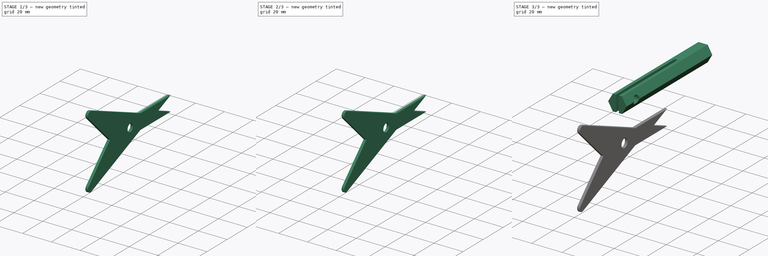
[diagram: build sequence overview — one tinted view per stage of 3, left to right]
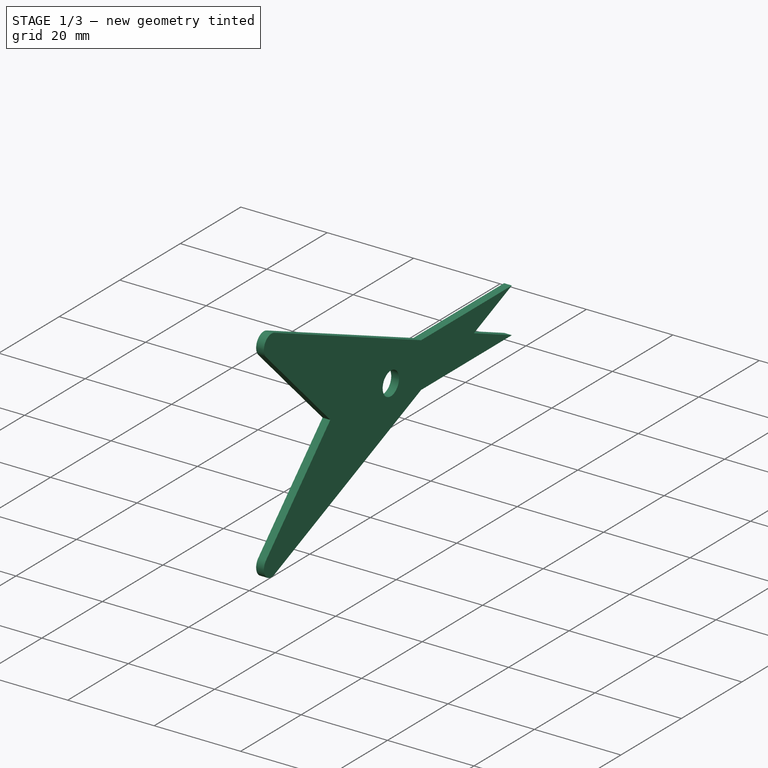
[diagram: stage 1 of 3 — iso view after this stage's code; geometry added in this stage tinted green]
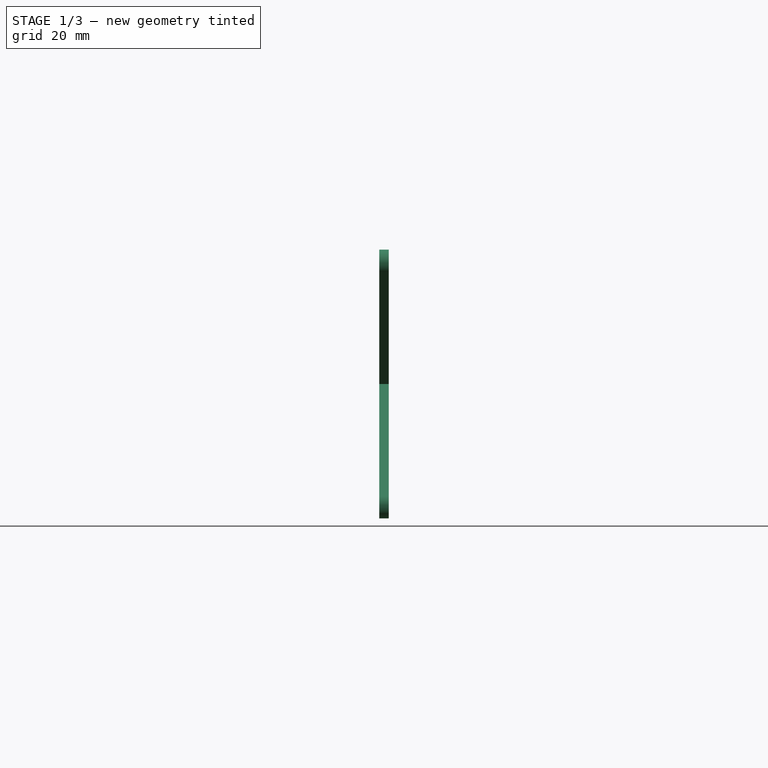
[diagram: stage 1 of 3 — front view after this stage's code; geometry added in this stage tinted green]
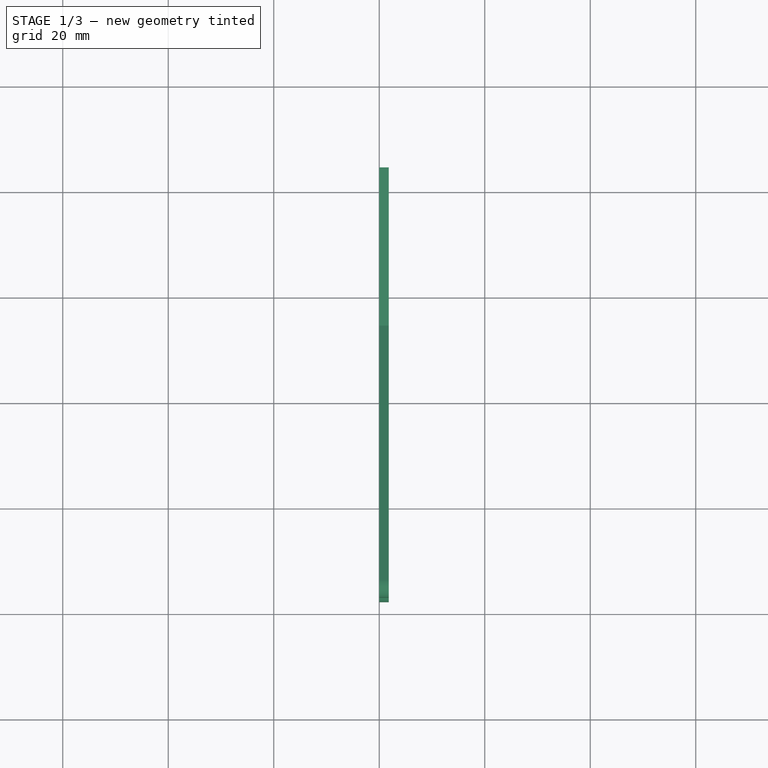
[diagram: stage 1 of 3 — top view after this stage's code; geometry added in this stage tinted green]
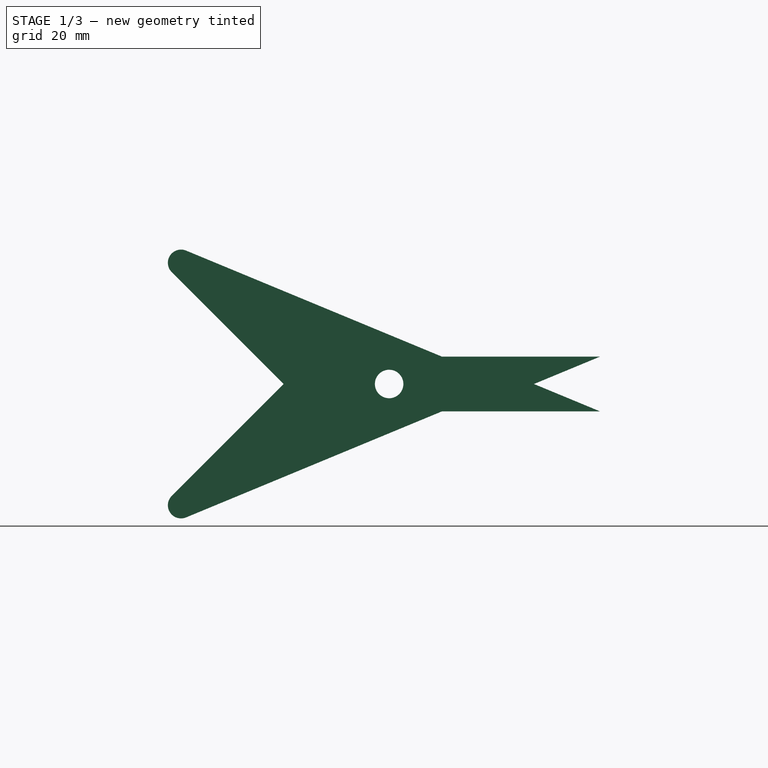
[diagram: stage 1 of 3 — right view after this stage's code; geometry added in this stage tinted green]
FCSTD DOCUMENT  (FreeCAD 1.0R39109 (Git))
Label: center finder
License: All rights reserved
LicenseURL: https://en.wikipedia.org/wiki/All_rights_reserved
objects: Sketcher::SketchObject×4, PartDesign::Pad×2, PartDesign::Pocket×2, PartDesign::Body×2, PartDesign::Chamfer×1, App::Part×1
note: 25 computed .brp shape members not serialized (recipe doc carries the construction recipe); baked Part::Feature solids carry a one-line shape summary decoded from their .brp

FEATURE [Sketcher::SketchObject] Sketch
  ArcFitTolerance = 1e-06
  AttachmentSupport = -> [XZ_Plane001]
  FullyConstrained = true
  MakeInternals = false
  MapMode = 5
  Placement = pos=(0,0,0) rot=(1,0,0;1.5708rad)
  sketch-geometry (7):
    g0: LineSegment StartX=-3 StartY=5.19615 StartZ=0 EndX=-6 EndY=-4.2351e-12 EndZ=0
    g1: LineSegment StartX=-6 StartY=-4.2351e-12 StartZ=0 EndX=-3 EndY=-5.19615 EndZ=0
    g2: LineSegment StartX=-3 StartY=-5.19615 StartZ=0 EndX=3 EndY=-5.19615 EndZ=0
    g3: LineSegment StartX=3 StartY=-5.19615 StartZ=0 EndX=6 EndY=-1.5167e-12 EndZ=0
    g4: LineSegment StartX=6 StartY=-1.5167e-12 StartZ=0 EndX=3 EndY=5.19615 EndZ=0
    g5: LineSegment StartX=3 StartY=5.19615 StartZ=0 EndX=-3 EndY=5.19615 EndZ=0
    g6: Circle [constr] CenterX=1.6223e-12 CenterY=-3.0739e-12 CenterZ=0 NormalX=0 NormalY=0 NormalZ=1 AngleXU=0 Radius=6
  constraints (16):
    c: Coincident(g0,g1)
    c: Coincident(g1,g2)
    c: Coincident(g2,g3)
    c: Coincident(g3,g4)
    c: Coincident(g4,g5)
    c: Coincident(g5,g0)
    c: Equal(g0, g1-g5) x5
    c: PointOnObject(g0,g6)
    c: PointOnObject(g1,g6)
    c: PointOnObject(g2,g6)
    c: PointOnObject(g3,g6)
    c: PointOnObject(g4,g6)
    c: PointOnObject(g5,g6)
    c: Horizontal(g5)
    c: Symmetric(g4,g1,g-1)
    c: Diameter(g6) = 12
FEATURE [PartDesign::Pad] Pad
  Direction = (0,-1,2e-16)
  Length = 80
  Length2 = 10
  Placement = pos=(0,0,0) rot=(1,0,0;1.5708rad)
  Profile = -> Sketch
  ReferenceAxis = -> Sketch [N_Axis]
  Refine = true
  Suppressed = false
  Type = 0
FEATURE [PartDesign::Body] Body  label="shaft"
  AllowCompound = false
  Group = -> [Sketch,Pad,Sketch001,Pocket,Sketch002,Pocket001]
  Origin = -> Origin001
  Tip = -> Pocket001
FEATURE [Sketcher::SketchObject] Sketch003
  ArcFitTolerance = 1e-06
  AttachmentSupport = -> [YZ_Plane002]
  FullyConstrained = false
  MakeInternals = false
  MapMode = 5
  Placement = pos=(0,0,0) rot=(0.57735,0.57735,0.57735;2.0944rad)
  expr: Constraints[13] = Sketch001.Constraints.shaft
  sketch-geometry (14):
    g0: LineSegment StartX=-116.998 StartY=-3.16667 StartZ=0 EndX=-95.7843 EndY=-24.3799 EndZ=0
    g1: LineSegment StartX=-95.7843 StartY=-24.3799 StartZ=0 EndX=-116.998 EndY=-45.5931 EndZ=0
    g2: LineSegment StartX=-114.273 StartY=-49.6704 StartZ=0 EndX=-65.7843 EndY=-29.576 EndZ=0
    g3: LineSegment StartX=-65.7843 StartY=-29.576 StartZ=0 EndX=-35.7843 EndY=-29.576 EndZ=0
    g4: LineSegment [constr] StartX=-35.7843 StartY=-29.576 StartZ=0 EndX=-35.7843 EndY=-19.1837 EndZ=0
    g5: LineSegment StartX=-35.7843 StartY=-19.1837 StartZ=0 EndX=-65.7843 EndY=-19.1837 EndZ=0
    g6: LineSegment StartX=-65.7843 StartY=-19.1837 StartZ=0 EndX=-114.273 EndY=0.910629 EndZ=0
    g7: ArcOfCircle CenterX=-115.23 CenterY=-1.3989 CenterZ=0 NormalX=0 NormalY=0 NormalZ=1 AngleXU=0 Radius=2.5 StartAngle=1.17792 EndAngle=3.92699
    g8: ArcOfCircle CenterX=-115.23 CenterY=-47.3608 CenterZ=0 NormalX=0 NormalY=0 NormalZ=1 AngleXU=0 Radius=2.5 StartAngle=2.35619 EndAngle=5.10526
    g9: LineSegment StartX=-35.7843 StartY=-19.1837 StartZ=0 EndX=-48.329 EndY=-24.3799 EndZ=0
    g10: LineSegment StartX=-48.329 StartY=-24.3799 StartZ=0 EndX=-35.7843 EndY=-29.576 EndZ=0
    g11: Circle CenterX=-75.7843 CenterY=-24.3799 CenterZ=0 NormalX=0 NormalY=0 NormalZ=1 AngleXU=0 Radius=2.7
    g12: GeomPoint [constr] X=-75.7843 Y=-19.1837 Z=0
    g13: GeomPoint [constr] X=-75.7843 Y=-29.576 Z=0
  constraints (34):
    c: Coincident(g0,g1)
    c: Coincident(g2,g3)
    c: Horizontal(g3)
    c: Coincident(g3,g4)
    c: Vertical(g4)
    c: Coincident(g4,g5)
    c: Horizontal(g5)
    c: Coincident(g5,g6)
    c: Perpendicular(g0,g1)
    c: Vertical(g2,g5)
    c: Tangent(g8,g1) = -1.5708
    c: Tangent(g7,g0) = -1.5708
    c: Distance(g0,g0) = 30
    c: DistanceY(g2,g5) = 10.3923
    c: Coincident(g4,g9)
    c: Coincident(g9,g10)
    c: Coincident(g10,g3)
    c: Angle(g5,g9) = 0.392699
    c: Equal(g9,g10)
    c: Diameter(g11) = 5.4
    c: PointOnObject(g12,g5)
    c: PointOnObject(g13,g3)
    c: Symmetric(g13,g12,g11)
    c: Equal(g1,g0)
    c: DistanceX(g13,g3) = 40
    c: Vertical(g13,g12)
    c: Horizontal(g11,g0)
    c: Equal(g6,g2)
    c: Tangent(g7,g6) = -1.5708
    c: Tangent(g2,g8) = -1.5708
    c: Radius(g8) = 2.5
    c: Equal(g8,g7)
    c: DistanceX(g3,g3) = 30
    c: DistanceX(g0,g11) = 20
FEATURE [PartDesign::Pad] Pad001
  Direction = (1,0,0)
  Length = 1.8
  Length2 = 10
  Placement = pos=(0,0,0) rot=(1,1,1;2.0944rad)
  Profile = -> Sketch003
  ReferenceAxis = -> Sketch003 [N_Axis]
  Refine = true
  Suppressed = false
  Type = 0
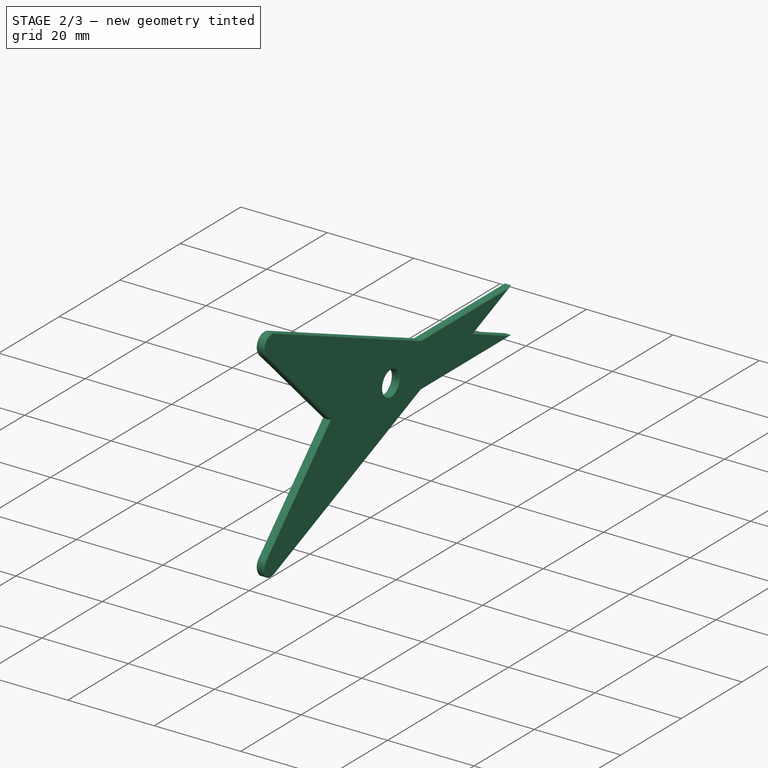
[diagram: stage 2 of 3 — iso view after this stage's code; geometry added in this stage tinted green]
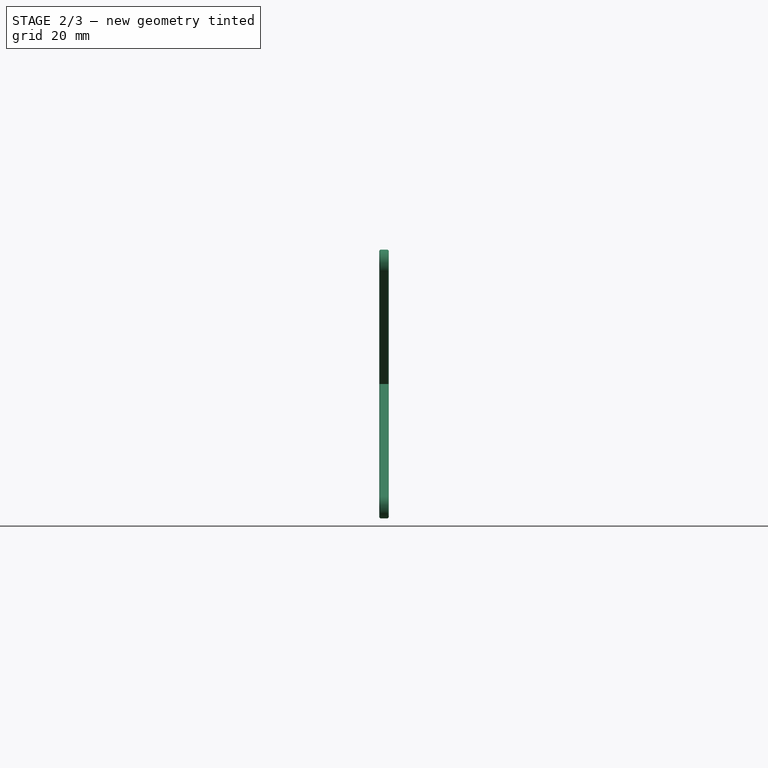
[diagram: stage 2 of 3 — front view after this stage's code; geometry added in this stage tinted green]
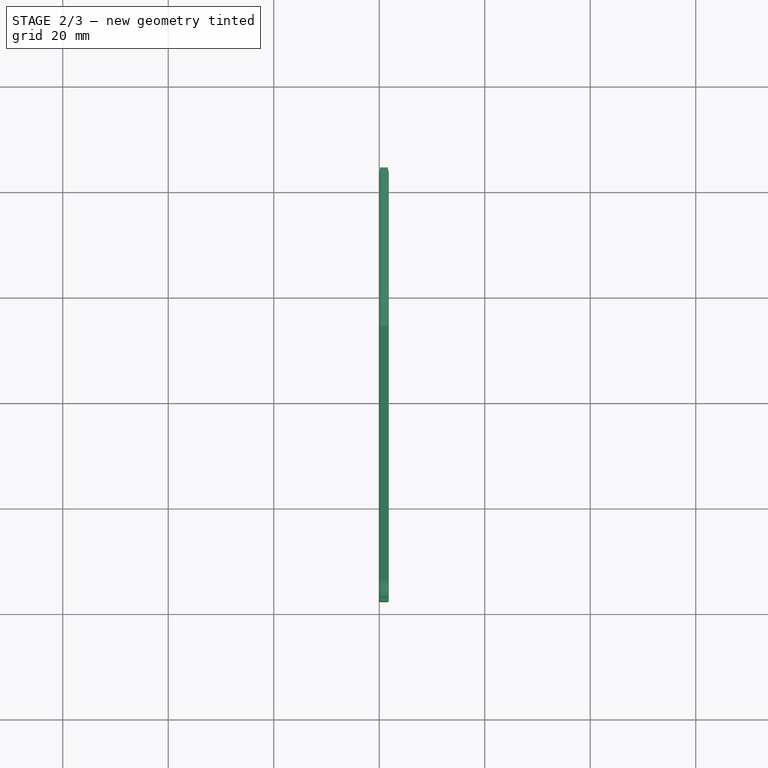
[diagram: stage 2 of 3 — top view after this stage's code; geometry added in this stage tinted green]
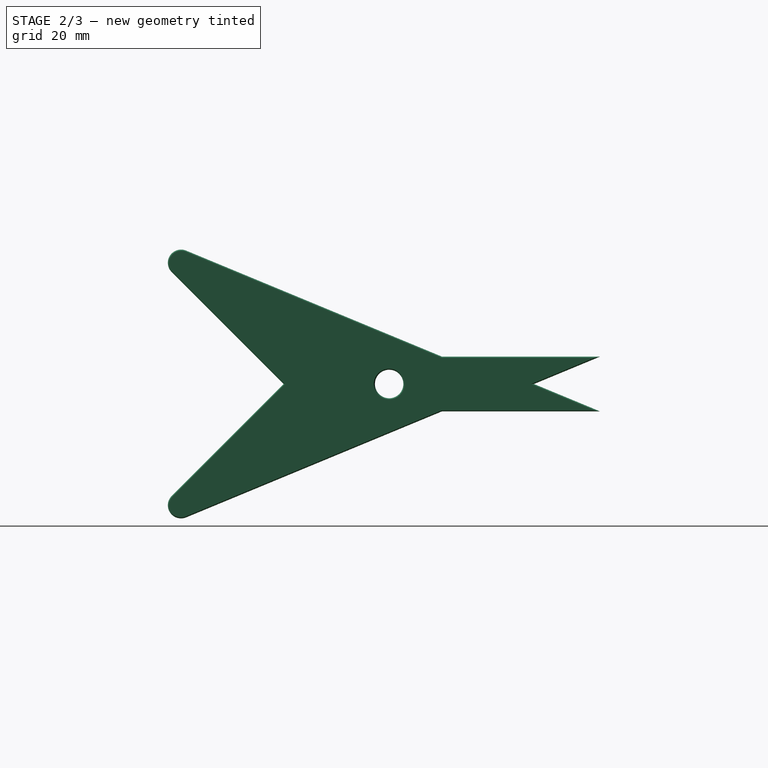
[diagram: stage 2 of 3 — right view after this stage's code; geometry added in this stage tinted green]
FEATURE [PartDesign::Chamfer] Chamfer
  Angle = 45
  Base = -> Pad001 [Face13,Face12]
  BaseFeature = -> Pad001
  ChamferType = 0
  FlipDirection = false
  Placement = pos=(0,0,0) rot=(1,1,1;2.0944rad)
  Refine = true
  Size = 0.2
  Size2 = 1
  SupportTransform = false
  Suppressed = false
  UseAllEdges = false
FEATURE [PartDesign::Body] Body001  label="finder"
  AllowCompound = false
  Group = -> [Sketch003,Pad001,Chamfer]
  Origin = -> Origin002
  Tip = -> Chamfer
FEATURE [App::Part] Part
  Group = -> [Body,Body001]
  Origin = -> Origin
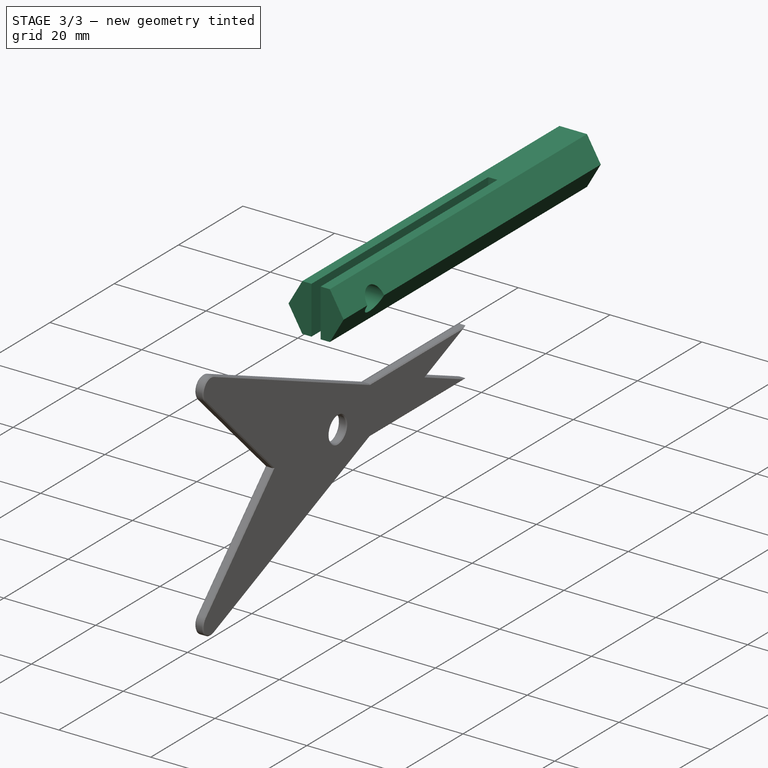
[diagram: stage 3 of 3 — iso view after this stage's code; geometry added in this stage tinted green]
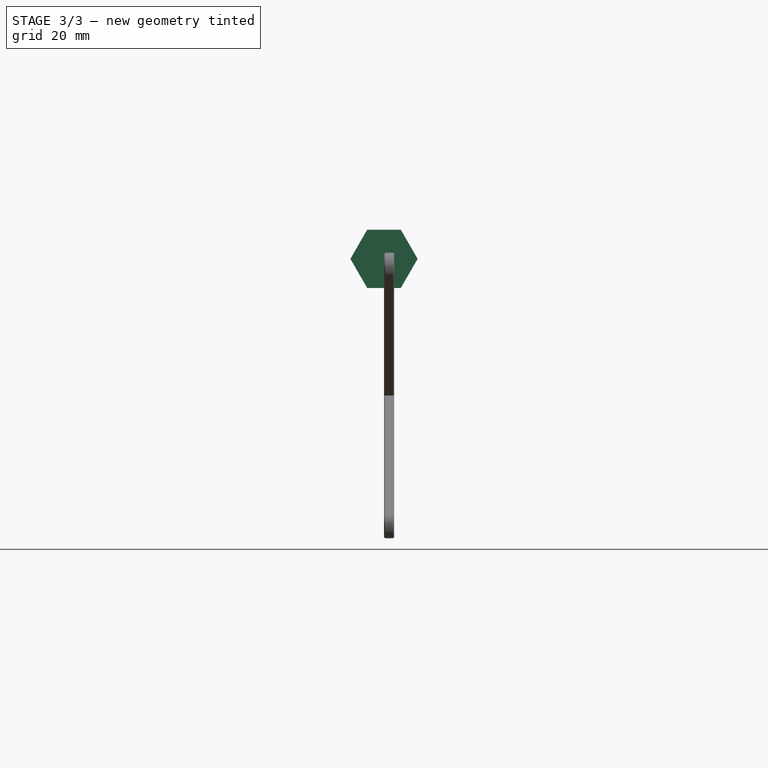
[diagram: stage 3 of 3 — front view after this stage's code; geometry added in this stage tinted green]
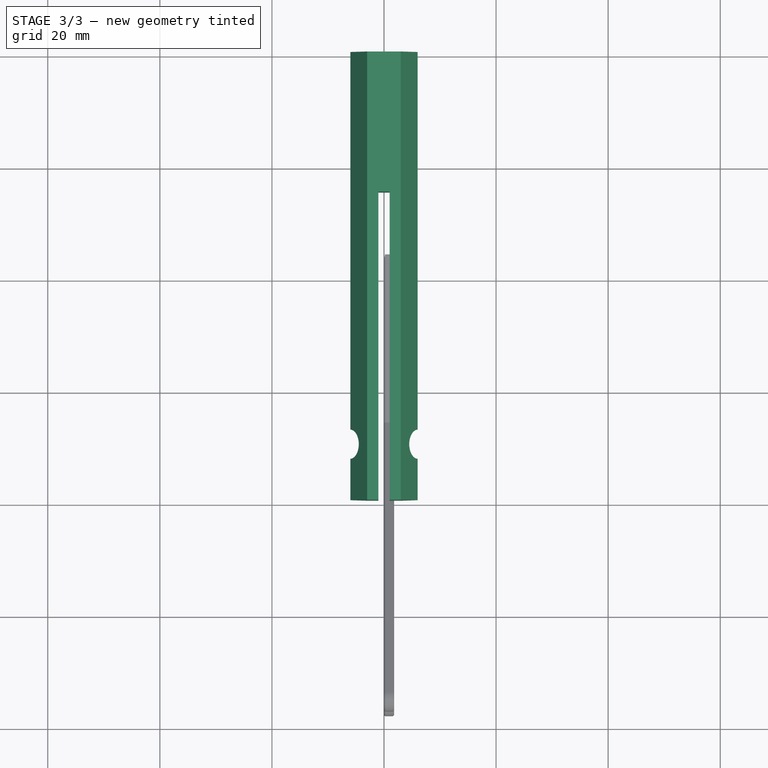
[diagram: stage 3 of 3 — top view after this stage's code; geometry added in this stage tinted green]
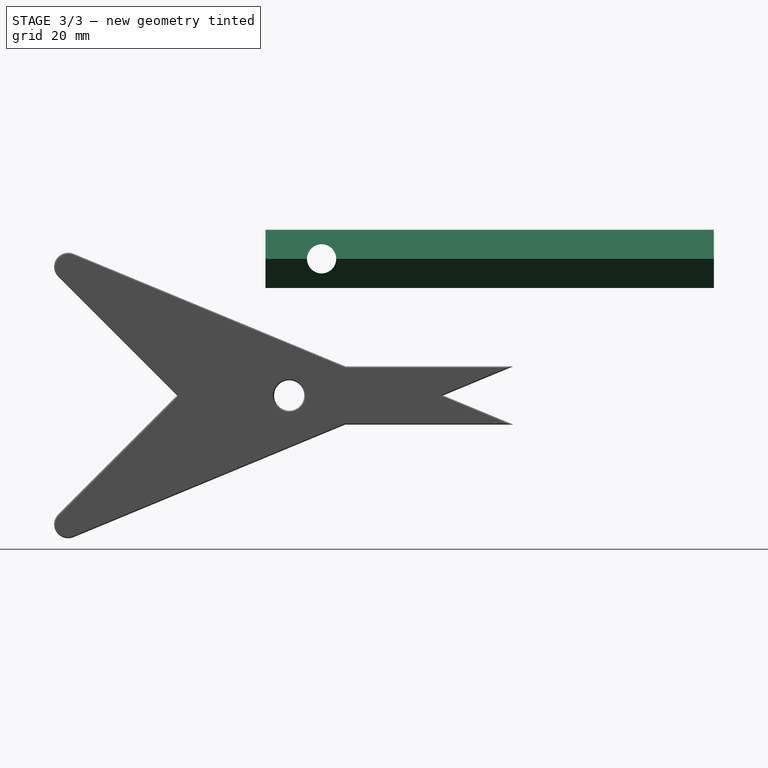
[diagram: stage 3 of 3 — right view after this stage's code; geometry added in this stage tinted green]
FEATURE [Sketcher::SketchObject] Sketch001
  ArcFitTolerance = 1e-06
  AttachmentSupport = -> [Pad]
  ExternalGeometry = -> [Pad]
  FullyConstrained = true
  MakeInternals = false
  MapMode = 5
  Placement = pos=(0,-80,0) rot=(1,0,0;1.5708rad)
  sketch-geometry (4):
    g0: LineSegment StartX=-1 StartY=5.19615 StartZ=0 EndX=-1 EndY=-5.19615 EndZ=0
    g1: LineSegment StartX=-1 StartY=-5.19615 StartZ=0 EndX=1 EndY=-5.19615 EndZ=0
    g2: LineSegment StartX=1 StartY=-5.19615 StartZ=0 EndX=1 EndY=5.19615 EndZ=0
    g3: LineSegment StartX=1 StartY=5.19615 StartZ=0 EndX=-1 EndY=5.19615 EndZ=0
  constraints (12):
    c: Coincident(g0,g1)
    c: Coincident(g1,g2)
    c: Coincident(g2,g3)
    c: Coincident(g3,g0)
    c: Vertical(g0)
    c: Vertical(g2)
    c: Horizontal(g1)
    c: Horizontal(g3)
    c: Symmetric(g1,g0,g-1)
    c: DistanceX(g3,g3) = 2
    c: PointOnObject(g1,g-3)
    c: DistanceY(g2,g2) = 10.3923  'shaft'
FEATURE [PartDesign::Pocket] Pocket
  BaseFeature = -> Pad
  Direction = (0,1,-2e-16)
  Length = 55
  Length2 = 5
  Placement = pos=(0,0,0) rot=(1,0,0;1.5708rad)
  Profile = -> Sketch001
  ReferenceAxis = -> Sketch001 [N_Axis]
  Refine = true
  Suppressed = false
  Type = 0
FEATURE [Sketcher::SketchObject] Sketch002
  ArcFitTolerance = 1e-06
  AttachmentSupport = -> [YZ_Plane001]
  ExternalGeometry = -> [Pocket]
  FullyConstrained = true
  MakeInternals = false
  MapMode = 5
  Placement = pos=(0,0,0) rot=(0.57735,0.57735,0.57735;2.0944rad)
  sketch-geometry (1):
    g0: Circle CenterX=-70 CenterY=0 CenterZ=0 NormalX=0 NormalY=0 NormalZ=1 AngleXU=0 Radius=2.6
  constraints (3):
    c: Diameter(g0) = 5.2
    c: PointOnObject(g0,g-1)
    c: DistanceX(g-3,g0) = 10
FEATURE [PartDesign::Pocket] Pocket001
  BaseFeature = -> Pocket
  Direction = (-1,0,0)
  Length = 5
  Length2 = 5
  Midplane = true
  Placement = pos=(0,0,0) rot=(1,0,0;1.5708rad)
  Profile = -> Sketch002
  ReferenceAxis = -> Sketch002 [N_Axis]
  Refine = true
  Suppressed = false
  Type = 1
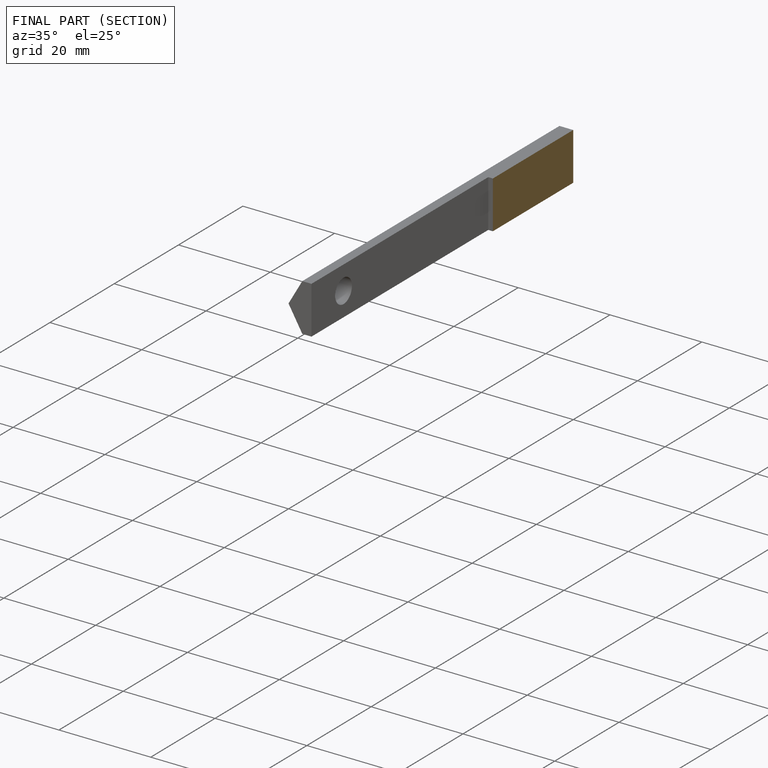
[diagram: finished part — half-section view (interior)]
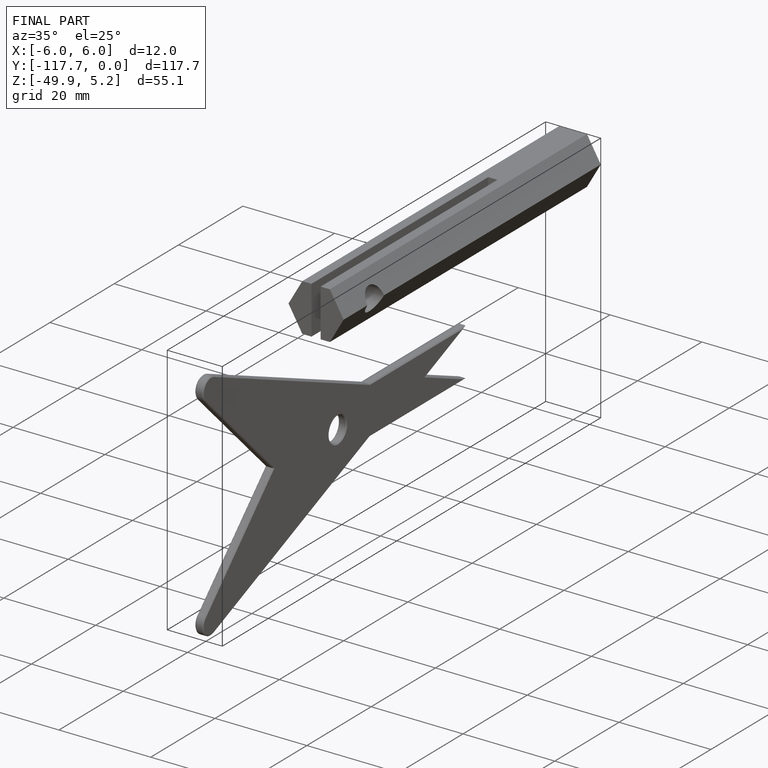
[diagram: finished part — iso view with bounding-box wireframe]
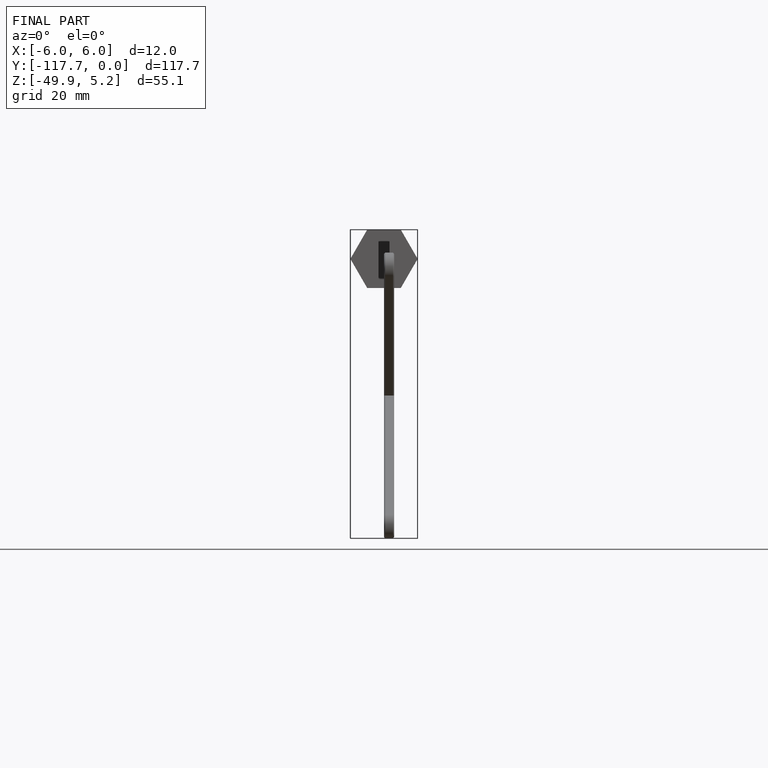
[diagram: finished part — front view with bounding-box wireframe]
